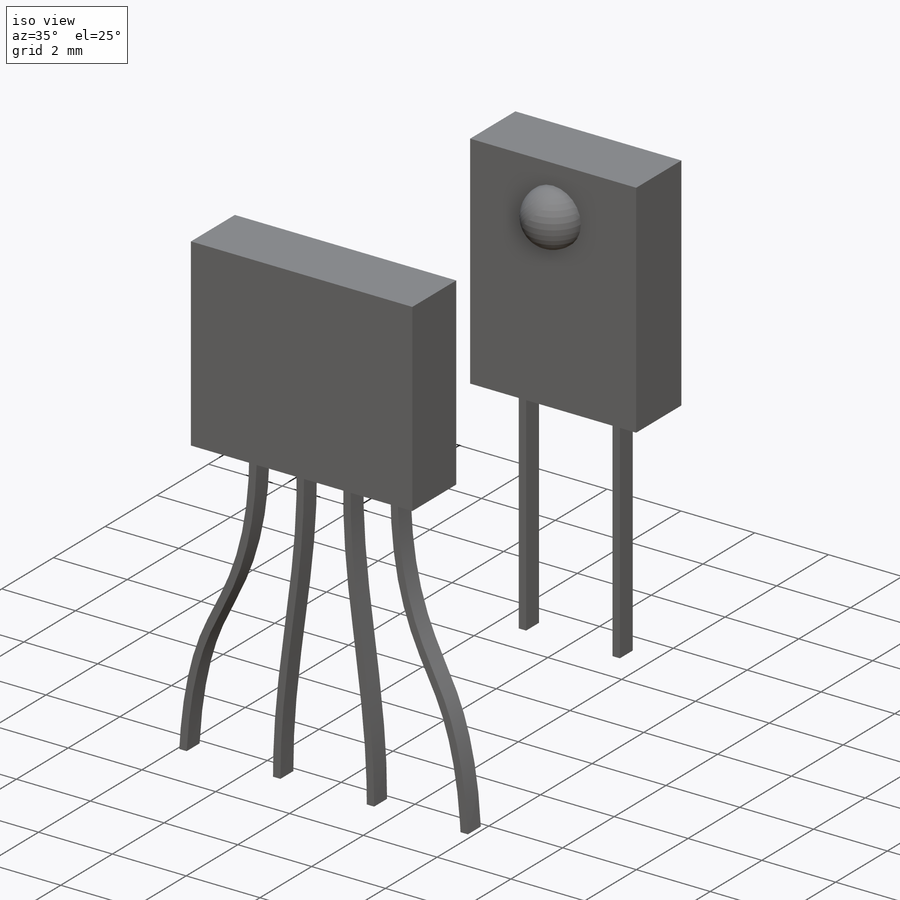
[diagram: iso view]
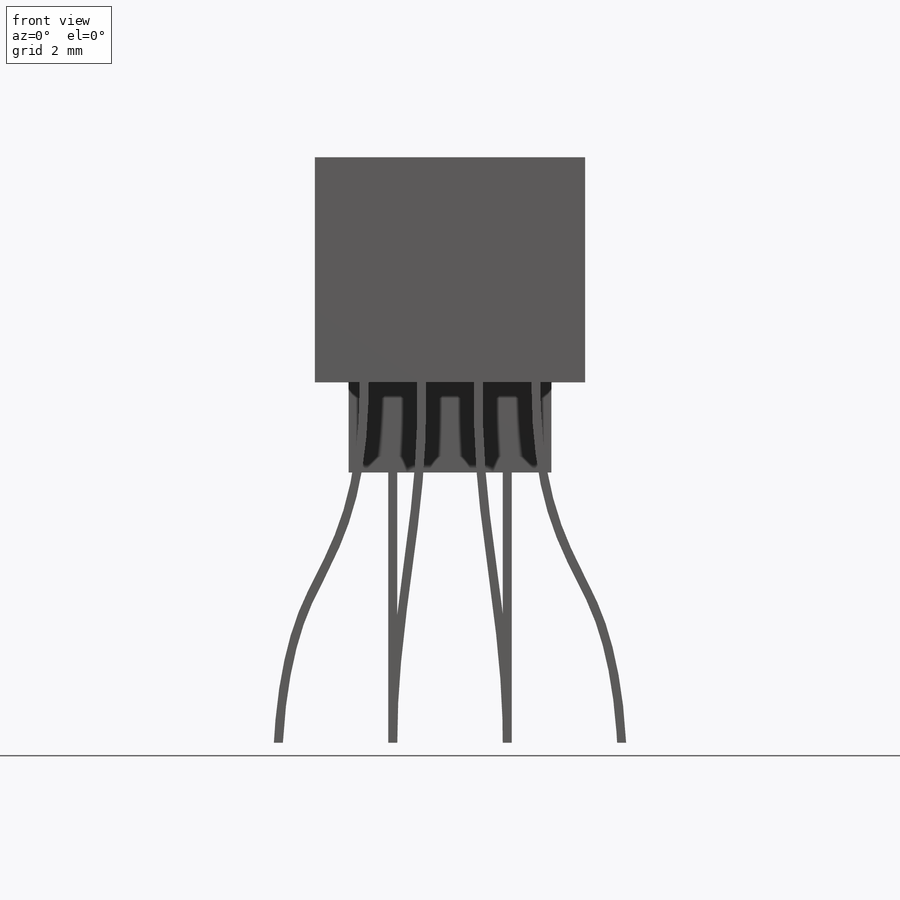
[diagram: front view]
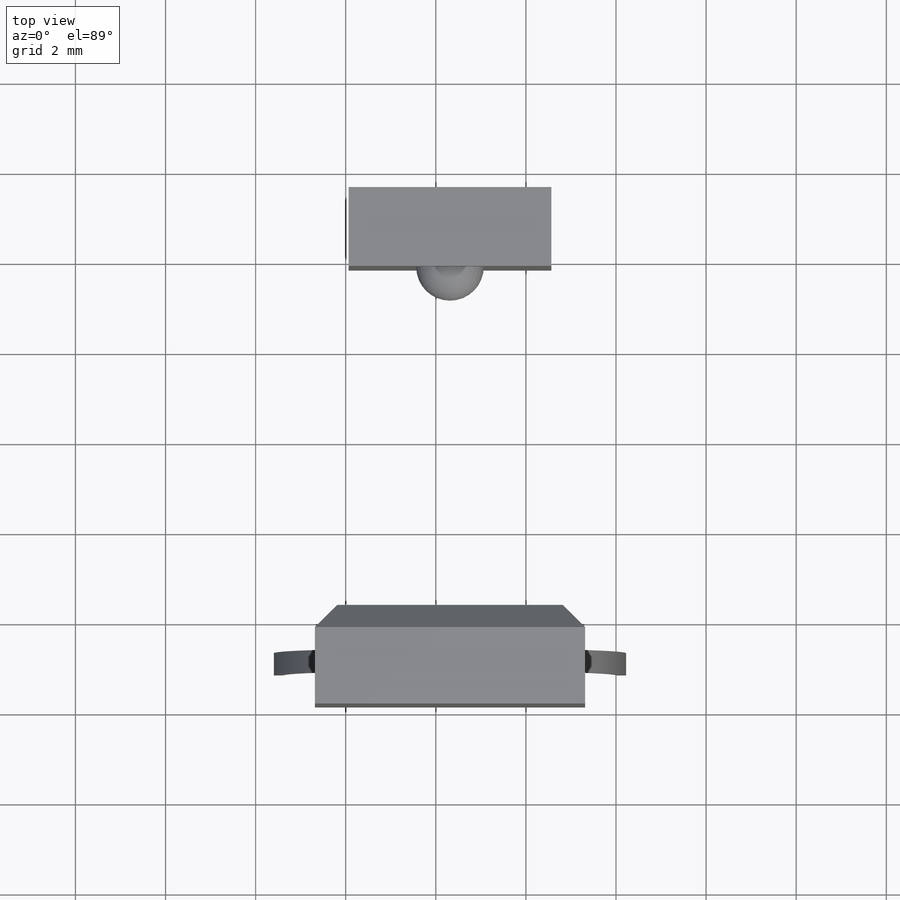
[diagram: top view]
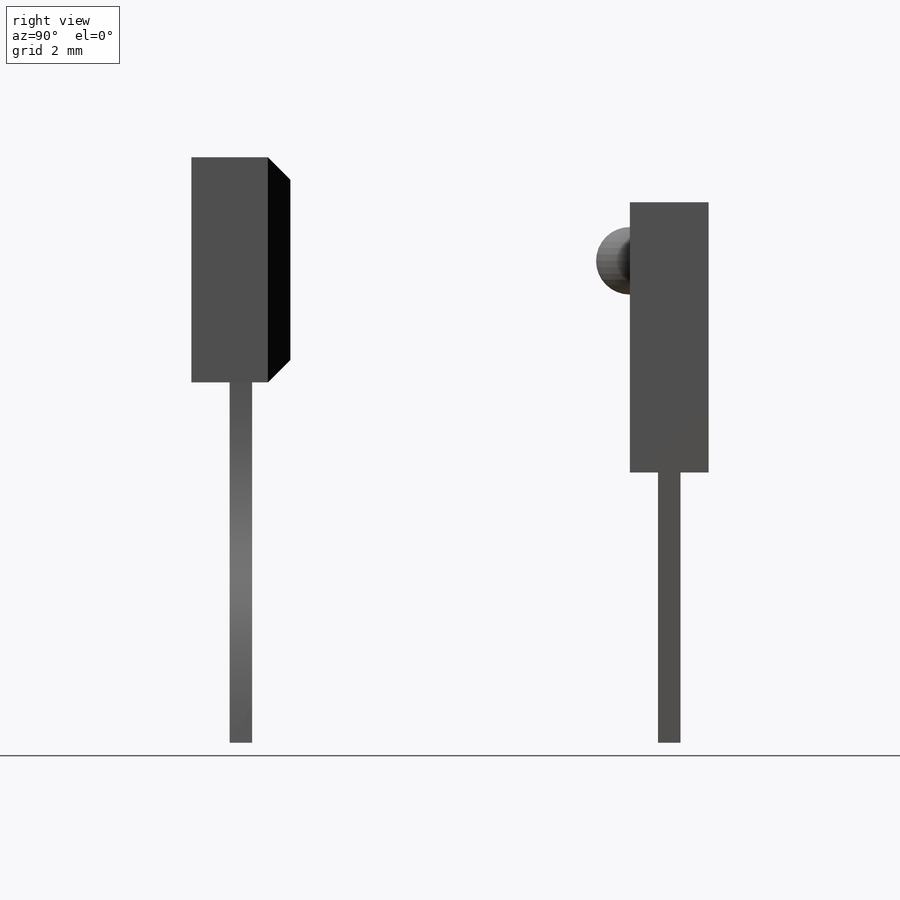
[diagram: right view]
SOLIDWORKS PART (.sldprt)
format: sldprt  version: not decoded by parser v0  size: 434,176 bytes
history: native  units: mm
features: sketch x9, extrude x6, cut_extrude x2, material x1, chamfer x1, revolve x1 (+11 scaffold rows collapsed)
feature tree (31):
  scaffold x11  (default folders/planes/origin — collapsed)
  material  "Material <not specified>"
  sketch  "Sketch1"  dims[D1=3.94mm]
  extrude  "Boss-Extrude2"  Depth=1.6mm
  sketch  "Sketch3"  dims[D1=3.0mm]
  extrude  "Boss-Extrude3"  Depth=5mm
  sketch  "Sketch4"  dims[c1.D1=1.27mm c1.D2=1.27mm c1.D3=2.54mm c1.D4=2.54mm c2.D1=0.635mm c2.D2=0.635mm c2.D3=1.27mm c2.D4=1.27mm c3.D1=0.1mm c3.D2=0.1mm c4.D1=0.1mm c4.D2=0.1mm]
  extrude  "Boss-Extrude4"  Depth=0.25mm
  chamfer  "Chamfer1"  Distance=0.5mm Angle=45deg
  sketch  "Sketch5"  dims[D1=2.54mm]
  extrude  "Boss-Extrude5"  Depth=6mm
  sketch  "Sketch6"  dims[D1=1.3mm]
  revolve  "Revolve1"  Angle=360deg
  sketch  "Sketch7"  dims[c1.D1=1.27mm c1.D2=1.27mm c2.D1=0.1mm c2.D2=0.1mm]
  extrude  "Boss-Extrude6"  Depth=0.25mm
  sketch  "Sketch8"  dims[c1.D1=2.54mm c1.D3=4.52mm c2.D1=3.0 c2.D2=2.0]
  cut_extrude  "Cut-Extrude1"  [1 undecoded]
  sketch  "Sketch9"
  cut_extrude  "Cut-Extrude2"  [1 undecoded]
  sketch  "Sketch10"
  extrude  "Boss-Extrude7"  Depth=2.5mm
decode coverage: 15 of 19 modeling features carry decoded parameters
note: 2 parameter values undecoded
note: suppression state not decoded; provenance and decode notes live in map.json
